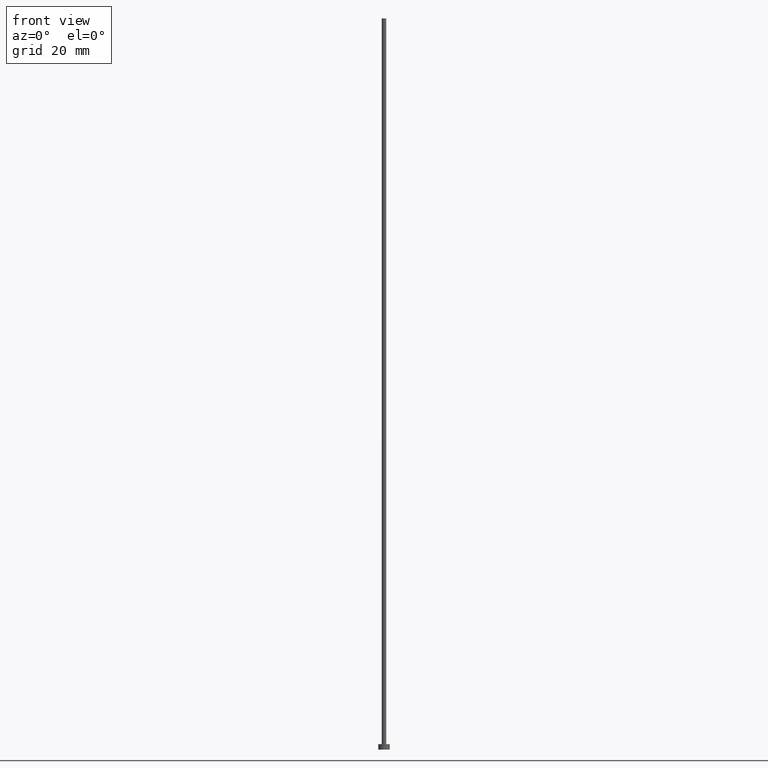
[diagram: clean part render]
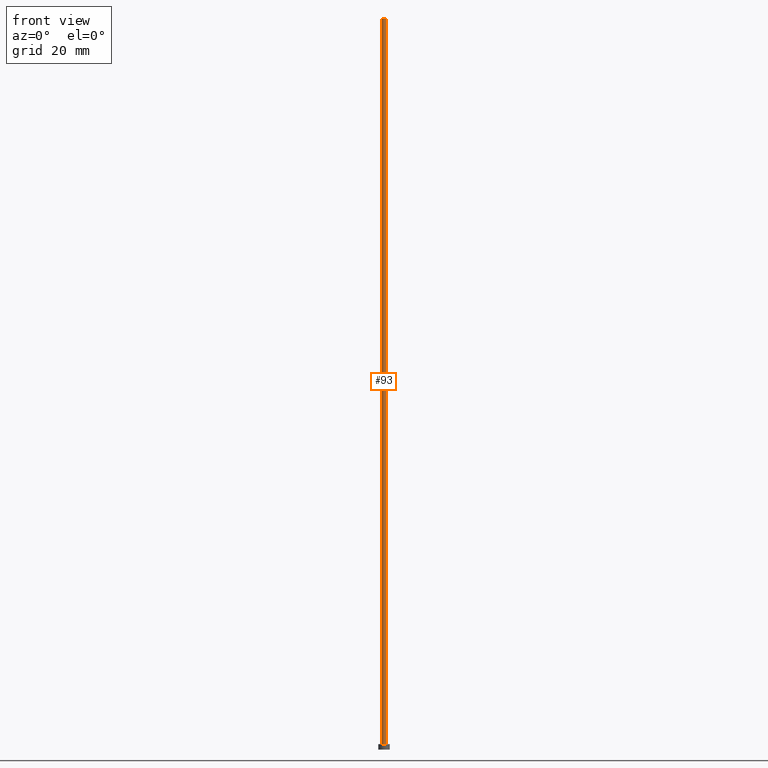
[diagram: same view with one face highlighted and labeled with its STEP entity id]
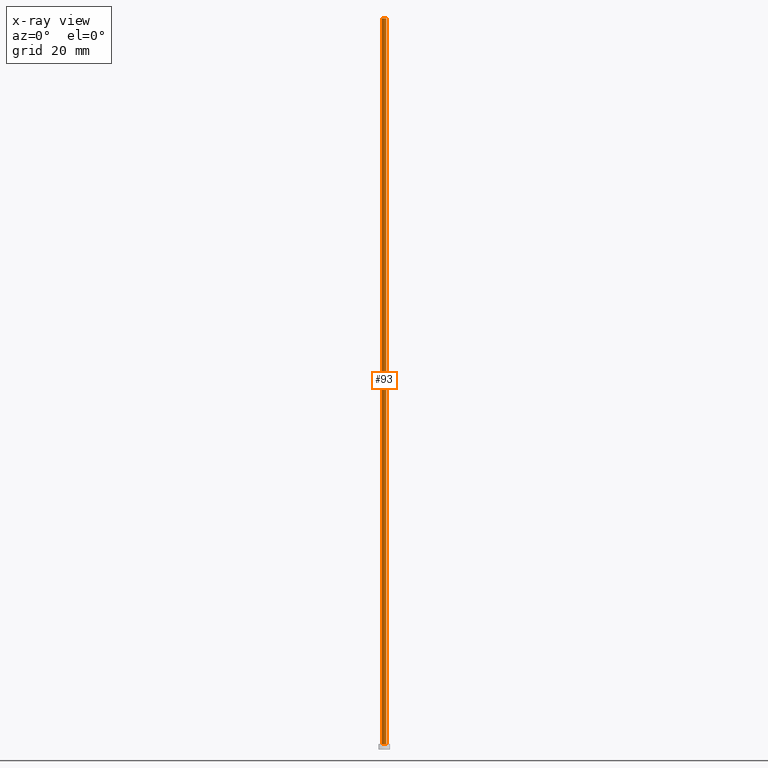
[diagram: x-ray of the same camera — body ghosted, the highlighted face saturated]
A machine part, front view. The second image highlights one B-rep face of the part: STEP entity #93.
The next image is the same camera in x-ray: the body ghosted, the highlighted face saturated — about 0% of this face is hidden behind the body in this view.
In plain terms, the highlighted cylindrical surface (edge-blend (fillet) strip) has radius 0.5 mm, axis along (-0, -0, -1).
Its self-contained STEP definition (entity closure, byte-faithful):
#2 = LINE ( 'NONE', #228, #184 ) ;
#9 = AXIS2_PLACEMENT_3D ( 'NONE', #198, #81, #204 ) ;
#23 = LINE ( 'NONE', #189, #110 ) ;
#32 = FACE_OUTER_BOUND ( 'NONE', #177, .T. ) ;
#45 = ORIENTED_EDGE ( 'NONE', *, *, #132, .T. ) ;
#55 = VERTEX_POINT ( 'NONE', #84 ) ;
#66 = EDGE_CURVE ( 'NONE', #55, #161, #2, .T. ) ;
#81 = DIRECTION ( 'NONE',  ( -0.000000000000000000, -0.000000000000000000, -1.000000000000000000 ) ) ;
#82 = DIRECTION ( 'NONE',  ( 0.000000000000000000, 0.000000000000000000, 1.000000000000000000 ) ) ;
#84 = CARTESIAN_POINT ( 'NONE',  ( 0.5000000000000000000, 6.123233995736766036E-17, 159.8999999999999773 ) ) ;
#93 = ADVANCED_FACE ( 'NONE', ( #32 ), #131, .T. ) ;
#94 = DIRECTION ( 'NONE',  ( 1.000000000000000000, 0.000000000000000000, 0.000000000000000000 ) ) ;
#97 = CIRCLE ( 'NONE', #252, 0.5000000000000000000 ) ;
#101 = CARTESIAN_POINT ( 'NONE',  ( 0.000000000000000000, 0.000000000000000000, 1.199999999999999956 ) ) ;
#108 = DIRECTION ( 'NONE',  ( -0.000000000000000000, -0.000000000000000000, -1.000000000000000000 ) ) ;
#110 = VECTOR ( 'NONE', #116, 1000.000000000000000 ) ;
#116 = DIRECTION ( 'NONE',  ( -0.000000000000000000, -0.000000000000000000, -1.000000000000000000 ) ) ;
#131 = CYLINDRICAL_SURFACE ( 'NONE', #9, 0.5000000000000000000 ) ;
#132 = EDGE_CURVE ( 'NONE', #239, #185, #23, .T. ) ;
#134 = CARTESIAN_POINT ( 'NONE',  ( 0.000000000000000000, 0.000000000000000000, 159.8999999999999773 ) ) ;
#142 = ORIENTED_EDGE ( 'NONE', *, *, #169, .F. ) ;
#156 = CARTESIAN_POINT ( 'NONE',  ( -0.5000000000000000000, 0.000000000000000000, 159.8999999999999773 ) ) ;
#161 = VERTEX_POINT ( 'NONE', #163 ) ;
#163 = CARTESIAN_POINT ( 'NONE',  ( 0.5000000000000000000, 6.123233995736766036E-17, 1.199999999999999956 ) ) ;
#169 = EDGE_CURVE ( 'NONE', #239, #55, #97, .T. ) ;
#173 = ORIENTED_EDGE ( 'NONE', *, *, #66, .F. ) ;
#175 = CIRCLE ( 'NONE', #203, 0.5000000000000000000 ) ;
#177 = EDGE_LOOP ( 'NONE', ( #173, #142, #45, #188 ) ) ;
#184 = VECTOR ( 'NONE', #108, 1000.000000000000000 ) ;
#185 = VERTEX_POINT ( 'NONE', #194 ) ;
#188 = ORIENTED_EDGE ( 'NONE', *, *, #225, .T. ) ;
#189 = CARTESIAN_POINT ( 'NONE',  ( -0.5000000000000000000, 0.000000000000000000, 159.8999999999999773 ) ) ;
#194 = CARTESIAN_POINT ( 'NONE',  ( -0.5000000000000000000, 0.000000000000000000, 1.199999999999999956 ) ) ;
#198 = CARTESIAN_POINT ( 'NONE',  ( 0.000000000000000000, 0.000000000000000000, 159.8999999999999773 ) ) ;
#203 = AXIS2_PLACEMENT_3D ( 'NONE', #101, #82, #232 ) ;
#204 = DIRECTION ( 'NONE',  ( -1.000000000000000000, 0.000000000000000000, 0.000000000000000000 ) ) ;
#208 = DIRECTION ( 'NONE',  ( 0.000000000000000000, 0.000000000000000000, 1.000000000000000000 ) ) ;
#225 = EDGE_CURVE ( 'NONE', #185, #161, #175, .T. ) ;
#228 = CARTESIAN_POINT ( 'NONE',  ( 0.5000000000000000000, 6.123233995736766036E-17, 159.8999999999999773 ) ) ;
#232 = DIRECTION ( 'NONE',  ( 1.000000000000000000, 0.000000000000000000, 0.000000000000000000 ) ) ;
#239 = VERTEX_POINT ( 'NONE', #156 ) ;
#252 = AXIS2_PLACEMENT_3D ( 'NONE', #134, #208, #94 ) ;